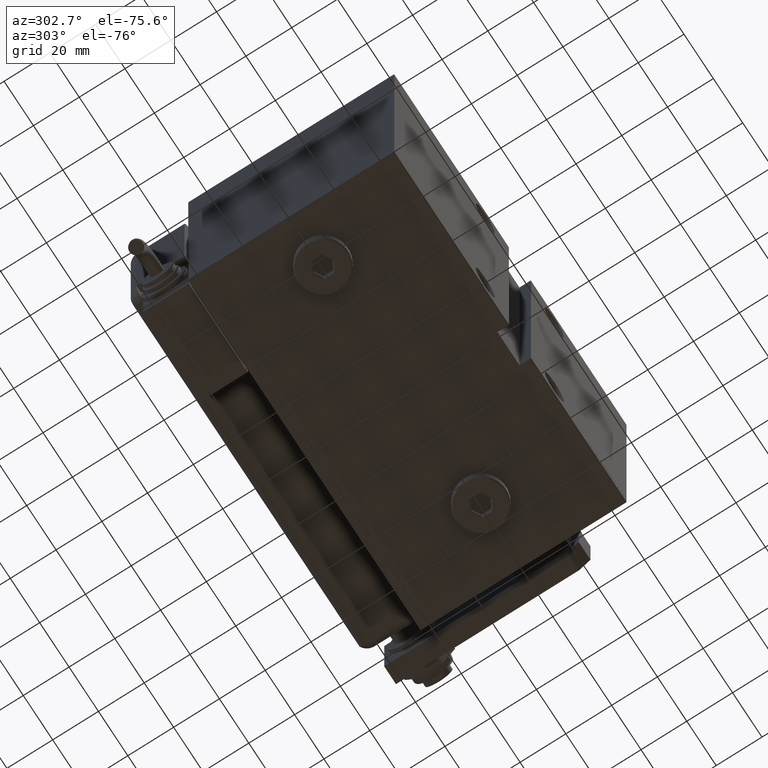
[diagram: clean part render]
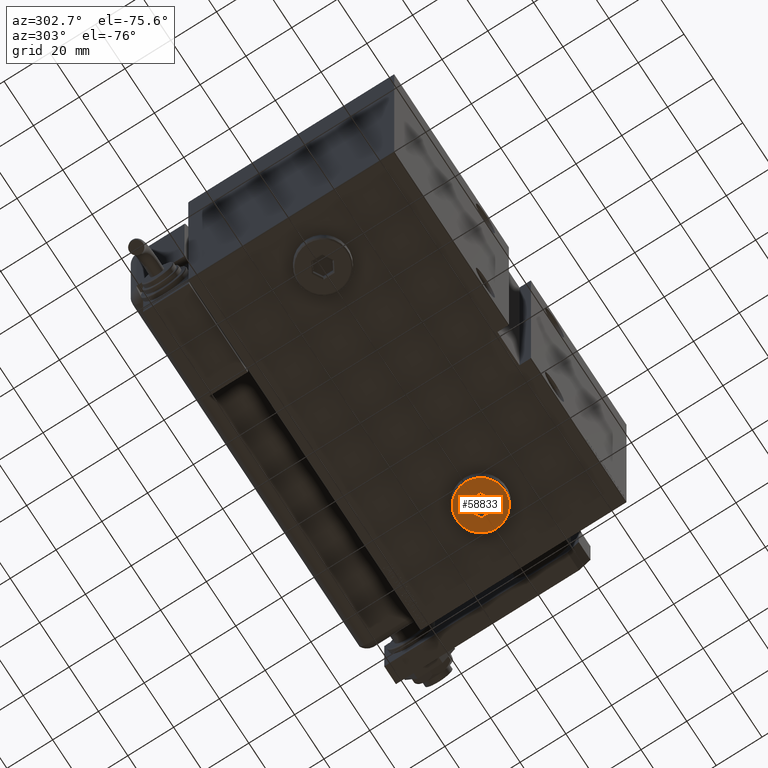
[diagram: same view with one face highlighted and labeled with its STEP entity id]
A machine part, auxiliary view. The second image highlights one B-rep face of the part: STEP entity #58833.
In plain terms, the highlighted planar face has unit normal (-0, 0, -1).
Its self-contained STEP definition (entity closure, byte-faithful):
#329 = CARTESIAN_POINT ( 'NONE',  ( 4.166666666666664298, -2.405626121623439584, 5.000000000000000000 ) ) ;
#837 = EDGE_CURVE ( 'NONE', #40867, #12842, #4366, .T. ) ;
#1015 = CARTESIAN_POINT ( 'NONE',  ( 3.916666666666664742, 2.549963688920845239, 5.000000000000000000 ) ) ;
#1184 = ORIENTED_EDGE ( 'NONE', *, *, #39614, .T. ) ;
#1481 = VECTOR ( 'NONE', #42888, 1000.000000000000000 ) ;
#3760 = FACE_BOUND ( 'NONE', #25889, .T. ) ;
#4366 = LINE ( 'NONE', #50730, #24404 ) ;
#4408 = EDGE_CURVE ( 'NONE', #52837, #32542, #29964, .T. ) ;
#5144 = CARTESIAN_POINT ( 'NONE',  ( 0.000000000000000000, 0.000000000000000000, 5.000000000000000000 ) ) ;
#5174 = ORIENTED_EDGE ( 'NONE', *, *, #30434, .T. ) ;
#6438 = DIRECTION ( 'NONE',  ( -0.8660254037844387076, -0.4999999999999998335, 0.000000000000000000 ) ) ;
#8891 = LINE ( 'NONE', #54949, #53413 ) ;
#9817 = DIRECTION ( 'NONE',  ( 1.024305408229881337E-16, 1.000000000000000000, 0.000000000000000000 ) ) ;
#11446 = EDGE_CURVE ( 'NONE', #58316, #52837, #43489, .T. ) ;
#12842 = VERTEX_POINT ( 'NONE', #47660 ) ;
#13368 = CARTESIAN_POINT ( 'NONE',  ( -4.166666666666665186, -2.405626121623437363, 5.000000000000000000 ) ) ;
#14849 = ORIENTED_EDGE ( 'NONE', *, *, #47724, .T. ) ;
#17921 = PLANE ( 'NONE',  #50979 ) ;
#22056 = AXIS2_PLACEMENT_3D ( 'NONE', #34135, #48254, #38641 ) ;
#22627 = VECTOR ( 'NONE', #6438, 1000.000000000000000 ) ;
#23036 = FACE_OUTER_BOUND ( 'NONE', #40516, .T. ) ;
#23446 = CIRCLE ( 'NONE', #44627, 10.50000000000000178 ) ;
#24132 = VERTEX_POINT ( 'NONE', #40132 ) ;
#24404 = VECTOR ( 'NONE', #27573, 1000.000000000000114 ) ;
#24522 = LINE ( 'NONE', #1015, #1481 ) ;
#25889 = EDGE_LOOP ( 'NONE', ( #14849, #40367, #53918, #40128, #28137, #46461 ) ) ;
#26543 = VECTOR ( 'NONE', #9817, 1000.000000000000000 ) ;
#27291 = DIRECTION ( 'NONE',  ( 1.024305408229881337E-16, -1.000000000000000000, 0.000000000000000000 ) ) ;
#27573 = DIRECTION ( 'NONE',  ( 0.8660254037844388186, 0.4999999999999997780, 0.000000000000000000 ) ) ;
#28137 = ORIENTED_EDGE ( 'NONE', *, *, #11446, .T. ) ;
#29352 = CARTESIAN_POINT ( 'NONE',  ( 0.2499999999999981681, -4.666914675949471736, 5.000000000000000000 ) ) ;
#29964 = LINE ( 'NONE', #48303, #58866 ) ;
#30434 = EDGE_CURVE ( 'NONE', #45253, #59262, #39347, .T. ) ;
#31974 = CARTESIAN_POINT ( 'NONE',  ( -8.363929151985410416E-16, -4.811252243246877391, 5.000000000000000000 ) ) ;
#32082 = DIRECTION ( 'NONE',  ( 1.000000000000000000, 0.000000000000000000, -0.000000000000000000 ) ) ;
#32542 = VERTEX_POINT ( 'NONE', #13368 ) ;
#34135 = CARTESIAN_POINT ( 'NONE',  ( 0.000000000000000000, 0.000000000000000000, 5.000000000000000000 ) ) ;
#37105 = CARTESIAN_POINT ( 'NONE',  ( 10.50000000000000178, 1.316495309083404815E-15, 5.000000000000000000 ) ) ;
#38641 = DIRECTION ( 'NONE',  ( 1.000000000000000000, 0.000000000000000000, 0.000000000000000000 ) ) ;
#38688 = DIRECTION ( 'NONE',  ( -0.8660254037844384856, 0.5000000000000002220, 0.000000000000000000 ) ) ;
#39347 = CIRCLE ( 'NONE', #22056, 10.50000000000000178 ) ;
#39614 = EDGE_CURVE ( 'NONE', #59262, #45253, #23446, .T. ) ;
#40128 = ORIENTED_EDGE ( 'NONE', *, *, #44054, .T. ) ;
#40132 = CARTESIAN_POINT ( 'NONE',  ( 4.166666666666663410, 2.405626121623439584, 5.000000000000000000 ) ) ;
#40367 = ORIENTED_EDGE ( 'NONE', *, *, #837, .T. ) ;
#40516 = EDGE_LOOP ( 'NONE', ( #5174, #1184 ) ) ;
#40867 = VERTEX_POINT ( 'NONE', #43259 ) ;
#41111 = DIRECTION ( 'NONE',  ( 0.000000000000000000, 0.000000000000000000, 1.000000000000000000 ) ) ;
#41770 = CARTESIAN_POINT ( 'NONE',  ( -4.166666666666664298, 2.116950987028627829, 5.000000000000000000 ) ) ;
#42888 = DIRECTION ( 'NONE',  ( 0.8660254037844387076, -0.4999999999999998335, 0.000000000000000000 ) ) ;
#43259 = CARTESIAN_POINT ( 'NONE',  ( -4.166666666666664298, 2.405626121623439584, 5.000000000000000000 ) ) ;
#43489 = LINE ( 'NONE', #29352, #22627 ) ;
#44054 = EDGE_CURVE ( 'NONE', #24132, #58316, #8891, .T. ) ;
#44114 = EDGE_CURVE ( 'NONE', #12842, #24132, #24522, .T. ) ;
#44627 = AXIS2_PLACEMENT_3D ( 'NONE', #5144, #45818, #46696 ) ;
#45253 = VERTEX_POINT ( 'NONE', #50088 ) ;
#45818 = DIRECTION ( 'NONE',  ( 0.000000000000000000, 0.000000000000000000, 1.000000000000000000 ) ) ;
#46461 = ORIENTED_EDGE ( 'NONE', *, *, #4408, .T. ) ;
#46696 = DIRECTION ( 'NONE',  ( 1.000000000000000000, 0.000000000000000000, 0.000000000000000000 ) ) ;
#47660 = CARTESIAN_POINT ( 'NONE',  ( -6.281144585932674641E-17, 4.811252243246876503, 5.000000000000000000 ) ) ;
#47724 = EDGE_CURVE ( 'NONE', #32542, #40867, #55578, .T. ) ;
#48254 = DIRECTION ( 'NONE',  ( 0.000000000000000000, 0.000000000000000000, 1.000000000000000000 ) ) ;
#48303 = CARTESIAN_POINT ( 'NONE',  ( -3.916666666666664742, -2.549963688920843907, 5.000000000000000000 ) ) ;
#50088 = CARTESIAN_POINT ( 'NONE',  ( -10.50000000000000178, 0.000000000000000000, 5.000000000000000000 ) ) ;
#50730 = CARTESIAN_POINT ( 'NONE',  ( -0.2499999999999992506, 4.666914675949470848, 5.000000000000000000 ) ) ;
#50979 = AXIS2_PLACEMENT_3D ( 'NONE', #58842, #41111, #32082 ) ;
#52837 = VERTEX_POINT ( 'NONE', #31974 ) ;
#53413 = VECTOR ( 'NONE', #27291, 1000.000000000000000 ) ;
#53918 = ORIENTED_EDGE ( 'NONE', *, *, #44114, .T. ) ;
#54949 = CARTESIAN_POINT ( 'NONE',  ( 4.166666666666664298, -2.116950987028627384, 5.000000000000000000 ) ) ;
#55578 = LINE ( 'NONE', #41770, #26543 ) ;
#58316 = VERTEX_POINT ( 'NONE', #329 ) ;
#58833 = ADVANCED_FACE ( 'NONE', ( #3760, #23036 ), #17921, .T. ) ;
#58842 = CARTESIAN_POINT ( 'NONE',  ( 0.000000000000000000, 0.000000000000000000, 5.000000000000000000 ) ) ;
#58866 = VECTOR ( 'NONE', #38688, 1000.000000000000000 ) ;
#59262 = VERTEX_POINT ( 'NONE', #37105 ) ;